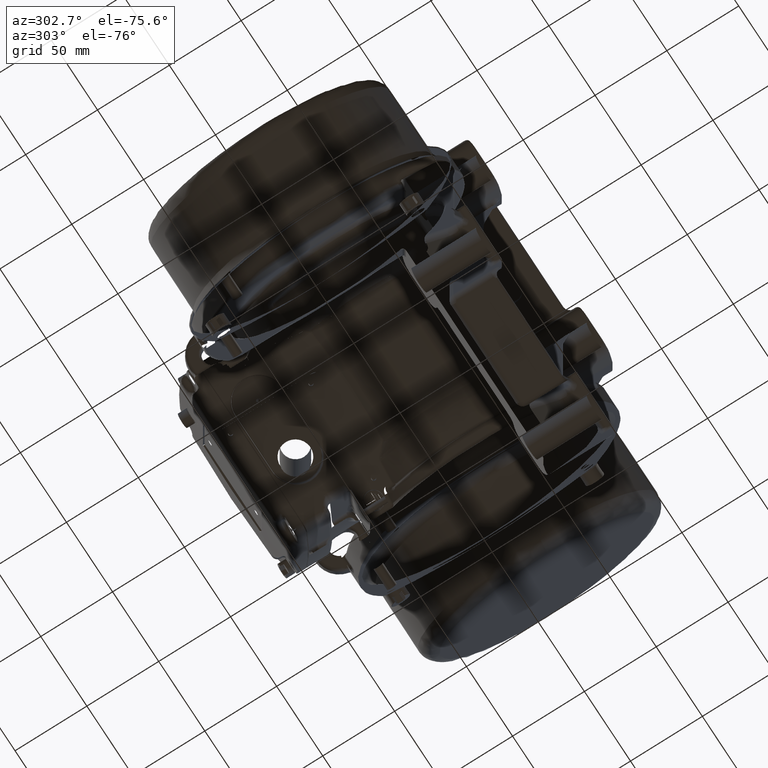
[diagram: clean part render]
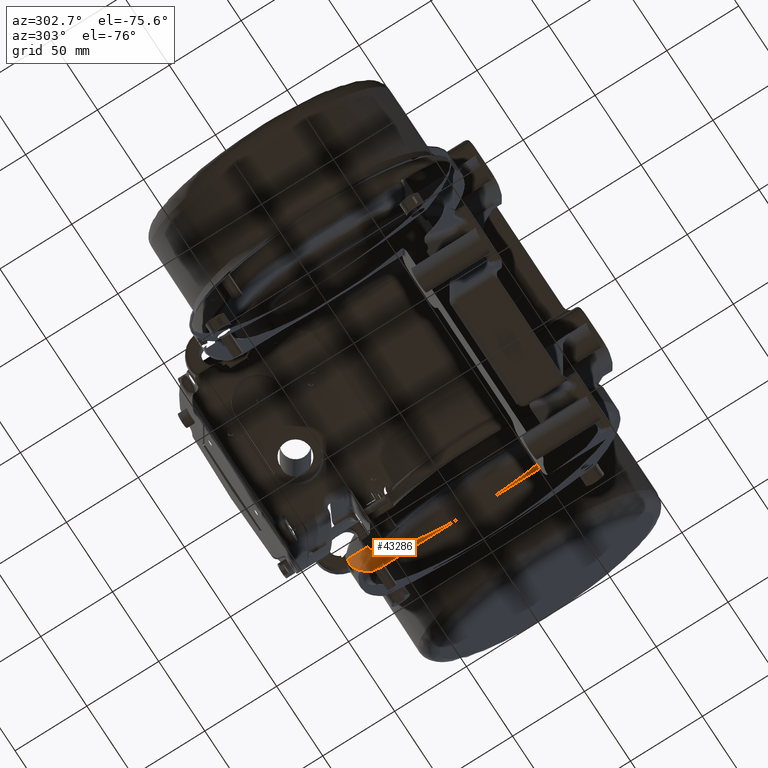
[diagram: same view with one face highlighted and labeled with its STEP entity id]
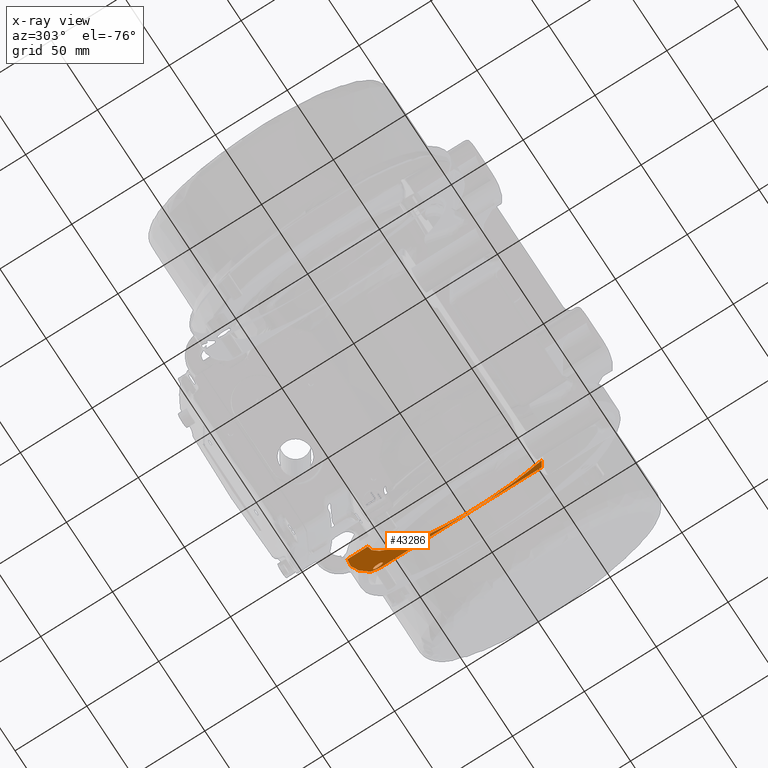
[diagram: x-ray of the same camera — body ghosted, the highlighted face saturated]
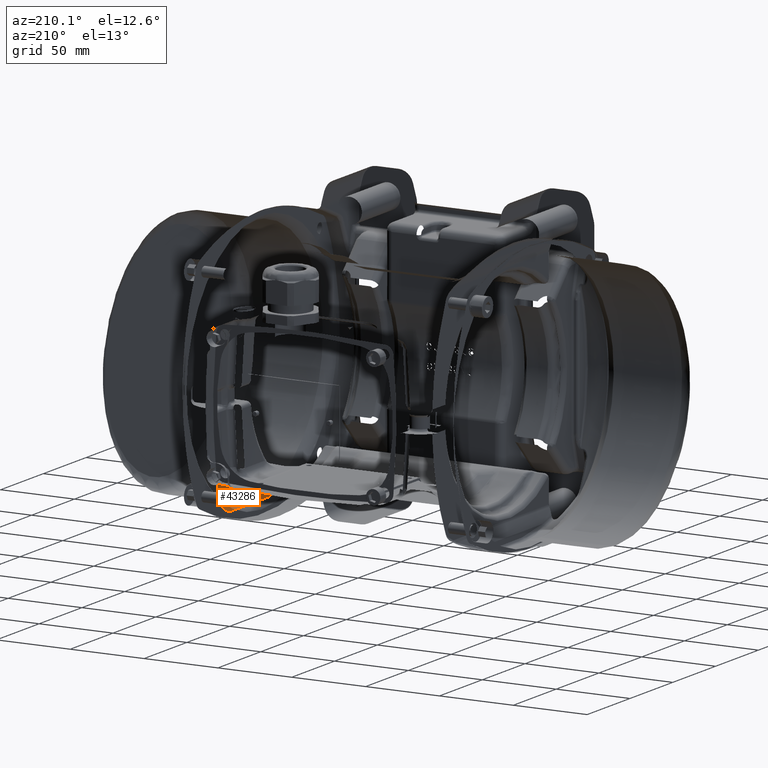
[diagram: same view with one face highlighted and labeled with its STEP entity id]
A machine part, auxiliary view. The second image highlights one B-rep face of the part: STEP entity #43286.
The next image is the same camera in x-ray: the body ghosted, the highlighted face saturated — about 0% of this face is hidden behind the body in this view.
A second angle (auxiliary view) of the same face is appended — the face is thin or edge-on in the first view.
In plain terms, the highlighted planar face has unit normal (1, 0, 0).
Its self-contained STEP definition (entity closure, byte-faithful):
#1923 = CARTESIAN_POINT ( 'NONE',  ( 79.65282437554779400, 71.85030347434329200, -70.13422730186390200 ) ) ;
#1945 = ORIENTED_EDGE ( 'NONE', *, *, #10679, .T. ) ;
#2911 = EDGE_CURVE ( 'NONE', #122613, #32933, #60428, .T. ) ;
#3346 = CARTESIAN_POINT ( 'NONE',  ( 79.65282437554779400, 73.55303715367169600, -7.499999998610419100 ) ) ;
#3717 = CARTESIAN_POINT ( 'NONE',  ( 79.65282437554780900, 70.21472780929303800, -72.24050440612859300 ) ) ;
#3830 = CARTESIAN_POINT ( 'NONE',  ( 79.65282437554782300, 22.32045709181868500, -71.33686743466138600 ) ) ;
#4127 = CARTESIAN_POINT ( 'NONE',  ( 79.65282437554785100, 66.01872374932899800, -70.90369760331530800 ) ) ;
#4274 = CARTESIAN_POINT ( 'NONE',  ( 79.65282437554780900, 12.64428844419643400, -73.81057159673932200 ) ) ;
#4719 = CARTESIAN_POINT ( 'NONE',  ( 79.65282437554783700, -17.13751115745222000, -73.33470576484649000 ) ) ;
#5115 = CARTESIAN_POINT ( 'NONE',  ( 79.65282437554792200, 86.45973590249784000, -23.63823062964843700 ) ) ;
#5871 = CARTESIAN_POINT ( 'NONE',  ( 79.65282437554782300, 66.45767697386530400, -70.90369760331530800 ) ) ;
#7275 = EDGE_CURVE ( 'NONE', #51187, #122613, #83013, .T. ) ;
#8679 = VERTEX_POINT ( 'NONE', #12492 ) ;
#10679 = EDGE_CURVE ( 'NONE', #25724, #100238, #29347, .T. ) ;
#11540 = VERTEX_POINT ( 'NONE', #5871 ) ;
#11897 = CARTESIAN_POINT ( 'NONE',  ( 79.65282437554779400, 71.55562238140491600, -70.74285477880154400 ) ) ;
#12281 = CARTESIAN_POINT ( 'NONE',  ( 79.65282437554779400, 63.19079616087020000, -75.61916848027421200 ) ) ;
#12492 = CARTESIAN_POINT ( 'NONE',  ( 79.65282437554779400, 69.06320664640399800, -72.92132405004748800 ) ) ;
#13429 = EDGE_CURVE ( 'NONE', #11540, #93363, #25332, .T. ) ;
#13820 = CARTESIAN_POINT ( 'NONE',  ( 79.65282437554783700, 25.45706907550749800, -70.23084064270345600 ) ) ;
#14705 = CARTESIAN_POINT ( 'NONE',  ( 79.65282437554786600, -41.63159197409629500, -63.17386359998410200 ) ) ;
#15602 = CARTESIAN_POINT ( 'NONE',  ( 79.65282437554779400, 48.21966142050953900, -56.62631034203192800 ) ) ;
#17281 = CARTESIAN_POINT ( 'NONE',  ( 79.65282437554785100, 68.90629050524960100, -65.08008230302458200 ) ) ;
#19640 = CARTESIAN_POINT ( 'NONE',  ( 79.65282437554782300, 74.21867511121917000, -65.24036103898600900 ) ) ;
#21260 = CARTESIAN_POINT ( 'NONE',  ( 79.65282437554789400, -47.57102062945040200, -61.00000000000000000 ) ) ;
#23680 = CARTESIAN_POINT ( 'NONE',  ( 79.65282437554775200, 65.13120860099810700, -70.72796766990468600 ) ) ;
#24560 = CARTESIAN_POINT ( 'NONE',  ( 79.65282437554785100, 66.01594980936450000, -64.15369760331528000 ) ) ;
#25021 = CARTESIAN_POINT ( 'NONE',  ( 79.65282437554785100, 64.00940661031160100, -69.97731290360589200 ) ) ;
#25165 = CARTESIAN_POINT ( 'NONE',  ( 79.65282437554780900, 50.67930659382049200, -54.38763180327107000 ) ) ;
#25332 = B_SPLINE_CURVE_WITH_KNOTS ( 'NONE', 3,
 ( #76215, #4127, #23680, #25021, #117040, #96166, #118363, #74894, #34093, #24560, #35003 ),
 .UNSPECIFIED., .F., .F.,
 ( 4, 1, 1, 1, 1, 1, 1, 1, 4 ),
 ( 0.01055118637254947800, 0.01187067458968344700, 0.01319016280681741300, 0.01450965102395137700, 0.01582913924108534500, 0.01714862745821931600, 0.01846811567535328000, 0.01978760389248724500, 0.02110709210962121600 ),
 .UNSPECIFIED. ) ;
#25603 = CARTESIAN_POINT ( 'NONE',  ( 79.65282437554785100, 6.042441498064563100, -74.73626374320457400 ) ) ;
#25724 = VERTEX_POINT ( 'NONE', #85457 ) ;
#26039 = CARTESIAN_POINT ( 'NONE',  ( 79.65282437554783700, 15.89993271251414300, -73.13068656515587000 ) ) ;
#27075 = CARTESIAN_POINT ( 'NONE',  ( 79.65282437554779400, 71.85030347434329200, -70.13422730186390200 ) ) ;
#29031 = CARTESIAN_POINT ( 'NONE',  ( 79.65282437554789400, -47.02418295963050800, -59.27315473140900100 ) ) ;
#29347 = LINE ( 'NONE', #30550, #89238 ) ;
#30550 = CARTESIAN_POINT ( 'NONE',  ( 79.65282437554779400, 87.75626808933429900, -7.499999999999849900 ) ) ;
#30945 = EDGE_CURVE ( 'NONE', #128819, #51187, #132096, .T. ) ;
#32676 = PLANE ( 'NONE',  #94712 ) ;
#32827 = VECTOR ( 'NONE', #97067, 1000.000000000000000 ) ;
#32933 = VERTEX_POINT ( 'NONE', #130196 ) ;
#34093 = CARTESIAN_POINT ( 'NONE',  ( 79.65282437554785100, 65.13249548036307600, -64.32942753672591600 ) ) ;
#34703 = CARTESIAN_POINT ( 'NONE',  ( 79.65282437554780900, 34.54470297163176400, -66.08805308497592500 ) ) ;
#35003 = CARTESIAN_POINT ( 'NONE',  ( 79.65282437554782300, 66.45767697386531800, -64.15369760331529400 ) ) ;
#35587 = CARTESIAN_POINT ( 'NONE',  ( 79.65282437554778000, 73.21961183738622500, -10.81656261111849700 ) ) ;
#36488 = CARTESIAN_POINT ( 'NONE',  ( 79.65282437554783700, -35.86775292576511000, -66.52300184601452300 ) ) ;
#36817 = CARTESIAN_POINT ( 'NONE',  ( 79.65282437554785100, 69.65703946581113800, -68.85387865459090100 ) ) ;
#39591 = FACE_BOUND ( 'NONE', #115480, .T. ) ;
#41099 = EDGE_CURVE ( 'NONE', #100238, #128819, #41607, .T. ) ;
#41607 = B_SPLINE_CURVE_WITH_KNOTS ( 'NONE', 3,
 ( #77684, #35587, #75924, #45169, #66893, #66002, #128495, #66445, #86763, #108543, #88103, #25165, #15602, #118963, #67344, #34703, #108990, #13820, #3830, #26039, #4274, #25603, #76817, #46939, #128038, #98531, #4719, #97201, #118076, #127589, #36488, #14705, #56903, #76363 ),
 .UNSPECIFIED., .F., .F.,
 ( 4, 2, 2, 2, 2, 2, 2, 2, 2, 2, 2, 2, 2, 2, 2, 2, 4 ),
 ( 0.0000000000000000000, 0.06249999999999997200, 0.1249999999999999400, 0.1874999999999999700, 0.2500000000000000000, 0.3125000000000000000, 0.3750000000000000600, 0.4375000000000000600, 0.5000000000000001100, 0.5625000000000002200, 0.6250000000000001100, 0.6875000000000001100, 0.7500000000000001100, 0.8125000000000001100, 0.8750000000000000000, 0.9375000000000000000, 1.000000000000000000 ),
 .UNSPECIFIED. ) ;
#42454 = ORIENTED_EDGE ( 'NONE', *, *, #96214, .T. ) ;
#43286 = ADVANCED_FACE ( 'NONE', ( #94689, #39591 ), #32676, .T. ) ;
#43771 = CARTESIAN_POINT ( 'NONE',  ( 79.65282437554789400, -47.57102062945049400, -75.62124151453120600 ) ) ;
#45052 = CARTESIAN_POINT ( 'NONE',  ( 79.65282437554778000, 69.67149560230326700, -72.62680697444371000 ) ) ;
#45169 = CARTESIAN_POINT ( 'NONE',  ( 79.65282437554776600, 71.12670289253804900, -20.58179801911812500 ) ) ;
#45769 = VECTOR ( 'NONE', #84925, 1000.000000000000000 ) ;
#46939 = CARTESIAN_POINT ( 'NONE',  ( 79.65282437554783700, -3.940885812740367200, -75.01915735903125400 ) ) ;
#47729 = CARTESIAN_POINT ( 'NONE',  ( 79.65282437554785100, 69.65695367385339400, -66.20351655203974400 ) ) ;
#51187 = VERTEX_POINT ( 'NONE', #21260 ) ;
#51427 = CARTESIAN_POINT ( 'NONE',  ( 79.65282437554779400, 71.85030347434329200, -70.13422730186390200 ) ) ;
#51801 = DIRECTION ( 'NONE',  ( -3.275570791092070000E-016, 1.000000000000000000, 0.0000000000000000000 ) ) ;
#53296 = ORIENTED_EDGE ( 'NONE', *, *, #87069, .T. ) ;
#54567 = CARTESIAN_POINT ( 'NONE',  ( 79.65282437554782300, 66.45767697386531800, -64.15369760331529400 ) ) ;
#56903 = CARTESIAN_POINT ( 'NONE',  ( 79.65282437554782300, -44.38976214398164200, -61.31543760276385800 ) ) ;
#60428 = LINE ( 'NONE', #109298, #32827 ) ;
#66002 = CARTESIAN_POINT ( 'NONE',  ( 79.65282437554780900, 67.75550741541488300, -29.98355789467254000 ) ) ;
#66445 = CARTESIAN_POINT ( 'NONE',  ( 79.65282437554782300, 63.16667298877376200, -38.85397659780736700 ) ) ;
#66893 = CARTESIAN_POINT ( 'NONE',  ( 79.65282437554779400, 70.14422727810574500, -23.75935788510046400 ) ) ;
#67344 = CARTESIAN_POINT ( 'NONE',  ( 79.65282437554780900, 40.26694290100082400, -62.66803429218213500 ) ) ;
#68995 = CARTESIAN_POINT ( 'NONE',  ( 79.65282437554782300, 66.45767697386530400, -70.90369760331530800 ) ) ;
#70157 = B_SPLINE_CURVE_WITH_KNOTS ( 'NONE', 3,
 ( #12281, #84337, #126509, #125180 ),
 .UNSPECIFIED., .F., .F.,
 ( 4, 4 ),
 ( 0.0000000000000000000, 1.000000000000000000 ),
 .UNSPECIFIED. ) ;
#71848 = ORIENTED_EDGE ( 'NONE', *, *, #2911, .T. ) ;
#73481 = CARTESIAN_POINT ( 'NONE',  ( 79.65282437554779400, 87.75626808933429900, -75.62124151453120600 ) ) ;
#74894 = CARTESIAN_POINT ( 'NONE',  ( 79.65282437554785100, 64.00906344248096500, -65.08008230302455400 ) ) ;
#75924 = CARTESIAN_POINT ( 'NONE',  ( 79.65282437554779400, 72.66759032324206700, -14.09652766367546100 ) ) ;
#76215 = CARTESIAN_POINT ( 'NONE',  ( 79.65282437554782300, 66.45767697386530400, -70.90369760331530800 ) ) ;
#76363 = CARTESIAN_POINT ( 'NONE',  ( 79.65282437554789400, -47.02418295963050800, -59.27315473140900100 ) ) ;
#76817 = CARTESIAN_POINT ( 'NONE',  ( 79.65282437554782300, 2.725328865929757400, -74.97798137610030300 ) ) ;
#77684 = CARTESIAN_POINT ( 'NONE',  ( 79.65282437554779400, 73.55303715367169600, -7.499999998610419100 ) ) ;
#79303 = B_SPLINE_CURVE_WITH_KNOTS ( 'NONE', 3,
 ( #84860, #45052, #3717, #106637, #11897, #1923 ),
 .UNSPECIFIED., .F., .F.,
 ( 4, 2, 4 ),
 ( 0.0000000000000000000, 0.5000000000000000000, 1.000000000000000000 ),
 .UNSPECIFIED. ) ;
#79769 = EDGE_CURVE ( 'NONE', #25724, #98377, #115280, .T. ) ;
#81031 = ORIENTED_EDGE ( 'NONE', *, *, #41099, .T. ) ;
#83013 = LINE ( 'NONE', #43771, #45769 ) ;
#84026 = CARTESIAN_POINT ( 'NONE',  ( 79.65282437554785100, -47.57090718742450300, -60.69035033268366400 ) ) ;
#84337 = CARTESIAN_POINT ( 'NONE',  ( 79.65282437554780900, 65.16631220691847700, -74.75916756326977000 ) ) ;
#84860 = CARTESIAN_POINT ( 'NONE',  ( 79.65282437554779400, 69.06320664640399800, -72.92132405004748800 ) ) ;
#84911 = CARTESIAN_POINT ( 'NONE',  ( 79.65282437554785100, -47.20211378194869000, -59.52612071111791200 ) ) ;
#84925 = DIRECTION ( 'NONE',  ( -0.0000000000000000000, -0.0000000000000000000, -1.000000000000000000 ) ) ;
#85457 = CARTESIAN_POINT ( 'NONE',  ( 79.65282437554779400, 87.75419505515370100, -7.499999999999859700 ) ) ;
#86720 = CARTESIAN_POINT ( 'NONE',  ( 79.65282437554782300, 87.50411314244611600, -12.86236154605096400 ) ) ;
#86763 = CARTESIAN_POINT ( 'NONE',  ( 79.65282437554780900, 61.38273649200905900, -41.66100883369473700 ) ) ;
#87069 = EDGE_CURVE ( 'NONE', #93363, #11540, #95303, .T. ) ;
#88103 = CARTESIAN_POINT ( 'NONE',  ( 79.65282437554780900, 55.30000138586063900, -49.58243041581334200 ) ) ;
#88992 = ORIENTED_EDGE ( 'NONE', *, *, #79769, .F. ) ;
#89238 = VECTOR ( 'NONE', #134271, 1000.000000000000000 ) ;
#89329 = CARTESIAN_POINT ( 'NONE',  ( 79.65282437554785100, 67.78414534673240200, -70.72796766990468600 ) ) ;
#89619 = CARTESIAN_POINT ( 'NONE',  ( 79.65282437554789400, -47.57102062945040200, -75.61916848035269800 ) ) ;
#93363 = VERTEX_POINT ( 'NONE', #105104 ) ;
#94689 = FACE_OUTER_BOUND ( 'NONE', #132037, .T. ) ;
#94712 = AXIS2_PLACEMENT_3D ( 'NONE', #73481, #124682, #51801 ) ;
#95303 = B_SPLINE_CURVE_WITH_KNOTS ( 'NONE', 3,
 ( #54567, #96209, #98870, #17281, #47729, #129278, #36817, #129716, #89329, #109331, #68995 ),
 .UNSPECIFIED., .F., .F.,
 ( 4, 1, 1, 1, 1, 1, 1, 1, 4 ),
 ( 1.118863022827952400E-016, 0.001318898296568773000, 0.002637796593137455400, 0.003956694889706116300, 0.005275593186274778000, 0.006594491482843477900, 0.007913389779412128400, 0.009232288075980777200, 0.01055118637254947800 ),
 .UNSPECIFIED. ) ;
#96166 = CARTESIAN_POINT ( 'NONE',  ( 79.65282437554785100, 62.99483677184880300, -67.52869760331526500 ) ) ;
#96209 = CARTESIAN_POINT ( 'NONE',  ( 79.65282437554786600, 66.89940413836598100, -64.15369760331529400 ) ) ;
#96214 = EDGE_CURVE ( 'NONE', #8679, #98377, #79303, .T. ) ;
#97067 = DIRECTION ( 'NONE',  ( -3.275570791092070000E-016, 1.000000000000000000, 0.0000000000000000000 ) ) ;
#97201 = CARTESIAN_POINT ( 'NONE',  ( 79.65282437554783700, -23.57928979775116200, -71.62041810382602600 ) ) ;
#98377 = VERTEX_POINT ( 'NONE', #27075 ) ;
#98531 = CARTESIAN_POINT ( 'NONE',  ( 79.65282437554782300, -13.87358833288333700, -73.97436122688498000 ) ) ;
#98794 = EDGE_CURVE ( 'NONE', #32933, #8679, #70157, .T. ) ;
#98870 = CARTESIAN_POINT ( 'NONE',  ( 79.65282437554785100, 67.78285846736747500, -64.32942753672587300 ) ) ;
#100238 = VERTEX_POINT ( 'NONE', #3346 ) ;
#102959 = ORIENTED_EDGE ( 'NONE', *, *, #7275, .T. ) ;
#103367 = ORIENTED_EDGE ( 'NONE', *, *, #13429, .T. ) ;
#105104 = CARTESIAN_POINT ( 'NONE',  ( 79.65282437554782300, 66.45767697386531800, -64.15369760331529400 ) ) ;
#106637 = CARTESIAN_POINT ( 'NONE',  ( 79.65282437554779400, 71.16957103595059700, -71.28583569801503500 ) ) ;
#108543 = CARTESIAN_POINT ( 'NONE',  ( 79.65282437554780900, 57.44069968943766500, -47.03709300585786900 ) ) ;
#108990 = CARTESIAN_POINT ( 'NONE',  ( 79.65282437554779400, 31.58264735216310400, -67.60064907220775900 ) ) ;
#109298 = CARTESIAN_POINT ( 'NONE',  ( 79.65282437554779400, 87.75626808933429900, -75.61916848035269800 ) ) ;
#109331 = CARTESIAN_POINT ( 'NONE',  ( 79.65282437554785100, 66.89663019840153900, -70.90369760331535100 ) ) ;
#110672 = ORIENTED_EDGE ( 'NONE', *, *, #30945, .T. ) ;
#111686 = CARTESIAN_POINT ( 'NONE',  ( 79.65282437554782300, 83.26969949828462300, -39.59099576367743400 ) ) ;
#113025 = CARTESIAN_POINT ( 'NONE',  ( 79.65282437554782300, 78.46228793058669700, -55.20511828624663100 ) ) ;
#114446 = CARTESIAN_POINT ( 'NONE',  ( 79.65282437554783700, -47.52424888293216300, -60.38845695480569000 ) ) ;
#115280 = B_SPLINE_CURVE_WITH_KNOTS ( 'NONE', 3,
 ( #127992, #86720, #5115, #111686, #113025, #19640, #51427 ),
 .UNSPECIFIED., .F., .F.,
 ( 4, 1, 1, 1, 4 ),
 ( 0.0000000000000000000, 0.2476219119839794500, 0.4984146079893199100, 0.7492073039946604000, 1.000000000000000000 ),
 .UNSPECIFIED. ) ;
#115480 = EDGE_LOOP ( 'NONE', ( #103367, #53296 ) ) ;
#117040 = CARTESIAN_POINT ( 'NONE',  ( 79.65282437554785100, 63.25831448191940600, -68.85387865459090100 ) ) ;
#118076 = CARTESIAN_POINT ( 'NONE',  ( 79.65282437554783700, -26.72921435951578700, -70.55325921889399900 ) ) ;
#118363 = CARTESIAN_POINT ( 'NONE',  ( 79.65282437554775200, 63.25840027387699400, -66.20351655203971600 ) ) ;
#118963 = CARTESIAN_POINT ( 'NONE',  ( 79.65282437554780900, 43.00198958096567700, -60.77565287753338900 ) ) ;
#120189 = ORIENTED_EDGE ( 'NONE', *, *, #98794, .T. ) ;
#122613 = VERTEX_POINT ( 'NONE', #89619 ) ;
#124682 = DIRECTION ( 'NONE',  ( 1.000000000000000000, 3.275570791092070000E-016, 0.0000000000000000000 ) ) ;
#124852 = CARTESIAN_POINT ( 'NONE',  ( 79.65282437554789400, -47.57102062945040200, -61.00000000000000000 ) ) ;
#125180 = CARTESIAN_POINT ( 'NONE',  ( 79.65282437554779400, 69.06320664640399800, -72.92132405004748800 ) ) ;
#126195 = CARTESIAN_POINT ( 'NONE',  ( 79.65282437554783700, -47.33784254901481600, -59.80018277792670700 ) ) ;
#126509 = CARTESIAN_POINT ( 'NONE',  ( 79.65282437554779400, 67.12378236882379700, -73.85988608650056600 ) ) ;
#126639 = CARTESIAN_POINT ( 'NONE',  ( 79.65282437554789400, -47.02418295963050800, -59.27315473140900100 ) ) ;
#127589 = CARTESIAN_POINT ( 'NONE',  ( 79.65282437554786600, -32.88745260589524800, -67.99877916625575800 ) ) ;
#127992 = CARTESIAN_POINT ( 'NONE',  ( 79.65282437554779400, 87.75419505515370100, -7.499999999999859700 ) ) ;
#128038 = CARTESIAN_POINT ( 'NONE',  ( 79.65282437554782300, -7.260652453911456300, -74.81843547335816400 ) ) ;
#128495 = CARTESIAN_POINT ( 'NONE',  ( 79.65282437554782300, 66.36004758800696400, -33.00238812822116300 ) ) ;
#128819 = VERTEX_POINT ( 'NONE', #29031 ) ;
#129278 = CARTESIAN_POINT ( 'NONE',  ( 79.65282437554785100, 69.92051717588174100, -67.52869760331530800 ) ) ;
#129716 = CARTESIAN_POINT ( 'NONE',  ( 79.65282437554785100, 68.90594733741895100, -69.97731290360593400 ) ) ;
#130196 = CARTESIAN_POINT ( 'NONE',  ( 79.65282437554779400, 63.19079616087020000, -75.61916848027421200 ) ) ;
#132037 = EDGE_LOOP ( 'NONE', ( #88992, #1945, #81031, #110672, #102959, #71848, #120189, #42454 ) ) ;
#132096 = B_SPLINE_CURVE_WITH_KNOTS ( 'NONE', 3,
 ( #126639, #84911, #126195, #114446, #84026, #124852 ),
 .UNSPECIFIED., .F., .F.,
 ( 4, 2, 4 ),
 ( 0.0000000000000000000, 0.5000000000000000000, 1.000000000000000000 ),
 .UNSPECIFIED. ) ;
#134271 = DIRECTION ( 'NONE',  ( 3.275570791092070000E-016, -1.000000000000000000, -0.0000000000000000000 ) ) ;